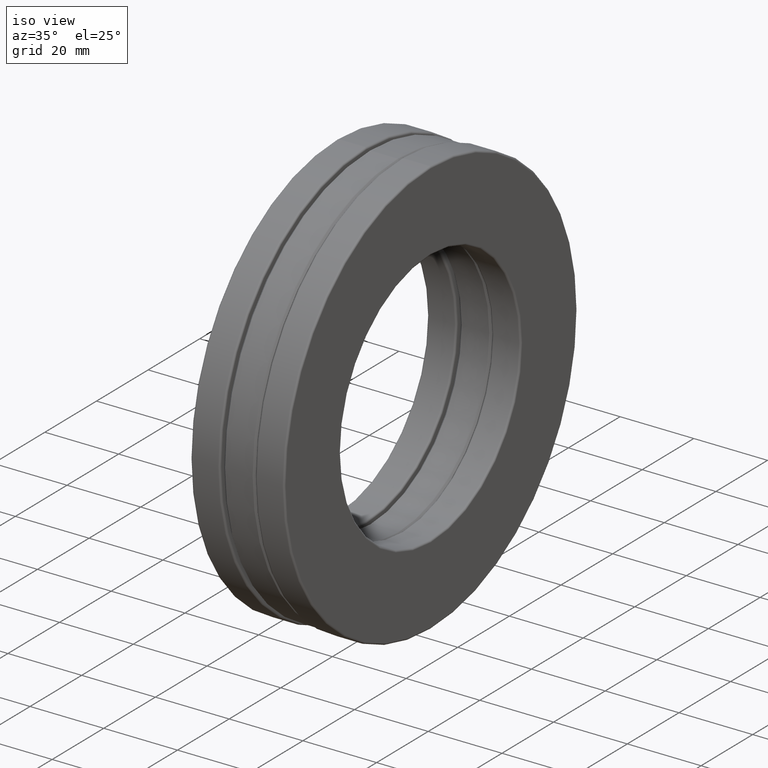
[diagram: clean part render]
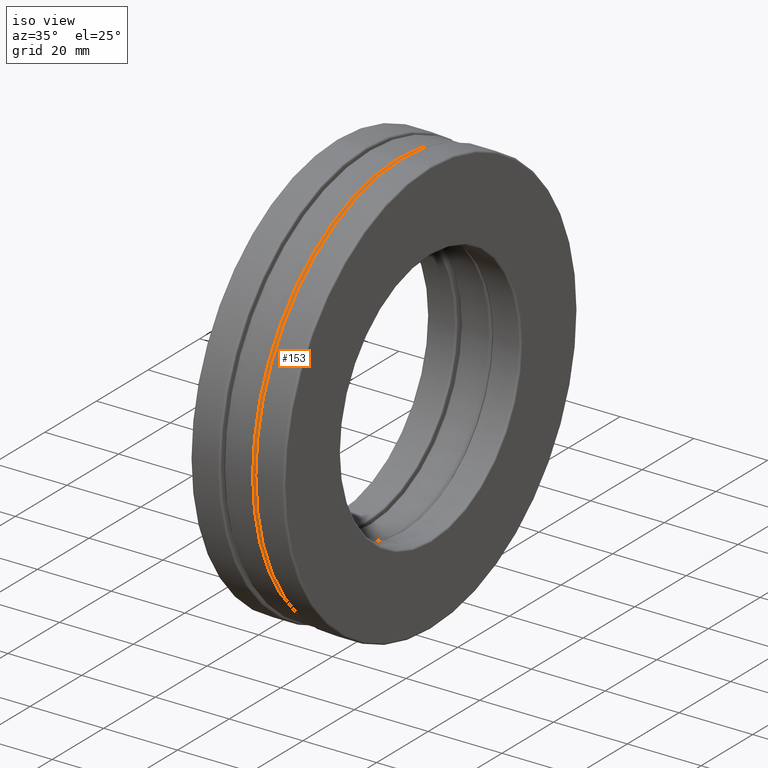
[diagram: same view with one face highlighted and labeled with its STEP entity id]
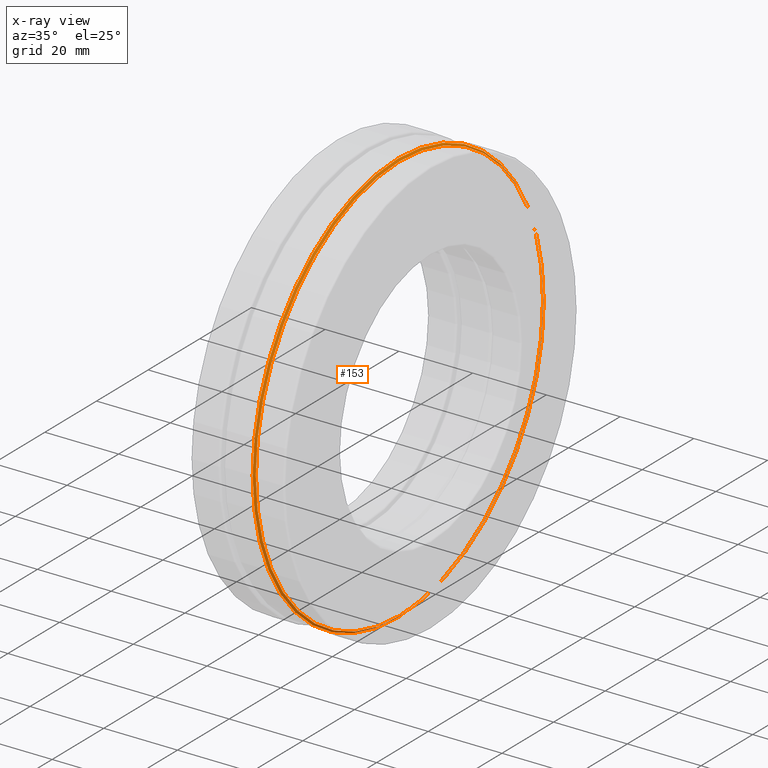
[diagram: x-ray of the same camera — body ghosted, the highlighted face saturated]
A machine part, iso view. The second image highlights one B-rep face of the part: STEP entity #153.
The next image is the same camera in x-ray: the body ghosted, the highlighted face saturated — about 11% of this face is hidden behind the body in this view.
In plain terms, the highlighted conical surface has half-angle 45 deg.
Its self-contained STEP definition (entity closure, byte-faithful):
#79 = ORIENTED_EDGE ( 'NONE', *, *, #836, .F. ) ;
#97 = VERTEX_POINT ( 'NONE', #656 ) ;
#107 = DIRECTION ( 'NONE',  ( 0.0000000000000000000, 0.0000000000000000000, 1.000000000000000000 ) ) ;
#153 = ADVANCED_FACE ( 'NONE', ( #606, #365 ), #1235, .T. ) ;
#195 = AXIS2_PLACEMENT_3D ( 'NONE', #799, #361, #780 ) ;
#321 = CIRCLE ( 'NONE', #1364, 2.194375000000000000 ) ;
#361 = DIRECTION ( 'NONE',  ( -1.000000000000000000, -0.0000000000000000000, -0.0000000000000000000 ) ) ;
#365 = FACE_OUTER_BOUND ( 'NONE', #1323, .T. ) ;
#469 = CIRCLE ( 'NONE', #1197, 2.214375000000000400 ) ;
#581 = ORIENTED_EDGE ( 'NONE', *, *, #906, .T. ) ;
#606 = FACE_BOUND ( 'NONE', #1293, .T. ) ;
#656 = CARTESIAN_POINT ( 'NONE',  ( 0.1675000000000000100, 0.0000000000000000000, 2.194375000000000000 ) ) ;
#771 = DIRECTION ( 'NONE',  ( -1.000000000000000000, -0.0000000000000000000, -0.0000000000000000000 ) ) ;
#780 = DIRECTION ( 'NONE',  ( 0.0000000000000000000, 0.0000000000000000000, 1.000000000000000000 ) ) ;
#782 = CARTESIAN_POINT ( 'NONE',  ( 0.1474999999999999900, 0.0000000000000000000, 0.0000000000000000000 ) ) ;
#799 = CARTESIAN_POINT ( 'NONE',  ( 0.1474999999999999900, 0.0000000000000000000, 0.0000000000000000000 ) ) ;
#836 = EDGE_CURVE ( 'NONE', #846, #846, #469, .T. ) ;
#846 = VERTEX_POINT ( 'NONE', #915 ) ;
#906 = EDGE_CURVE ( 'NONE', #97, #97, #321, .T. ) ;
#915 = CARTESIAN_POINT ( 'NONE',  ( 0.1474999999999999900, 0.0000000000000000000, 2.214375000000000400 ) ) ;
#996 = DIRECTION ( 'NONE',  ( -1.000000000000000000, -0.0000000000000000000, -0.0000000000000000000 ) ) ;
#1197 = AXIS2_PLACEMENT_3D ( 'NONE', #782, #771, #107 ) ;
#1232 = CARTESIAN_POINT ( 'NONE',  ( 0.1675000000000000100, 0.0000000000000000000, 0.0000000000000000000 ) ) ;
#1235 = CONICAL_SURFACE ( 'NONE', #195, 2.214375000000000400, 0.7853981633974559400 ) ;
#1293 = EDGE_LOOP ( 'NONE', ( #581 ) ) ;
#1323 = EDGE_LOOP ( 'NONE', ( #79 ) ) ;
#1359 = DIRECTION ( 'NONE',  ( 0.0000000000000000000, 0.0000000000000000000, 1.000000000000000000 ) ) ;
#1364 = AXIS2_PLACEMENT_3D ( 'NONE', #1232, #996, #1359 ) ;